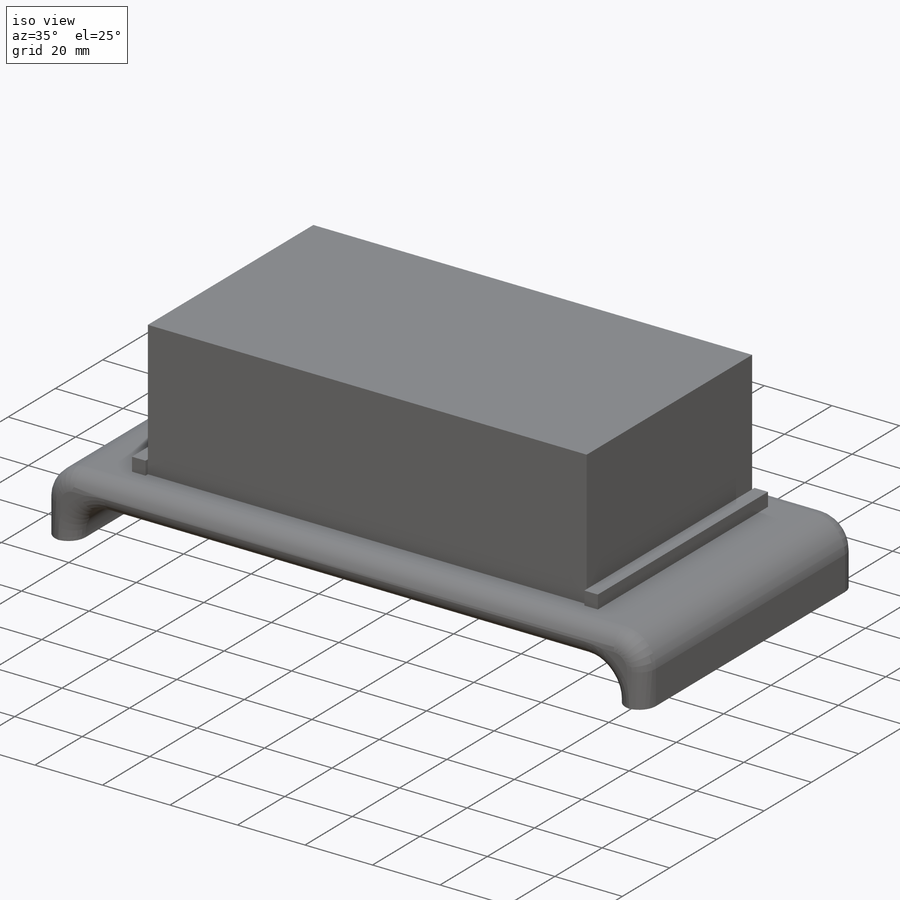
[diagram: iso view]
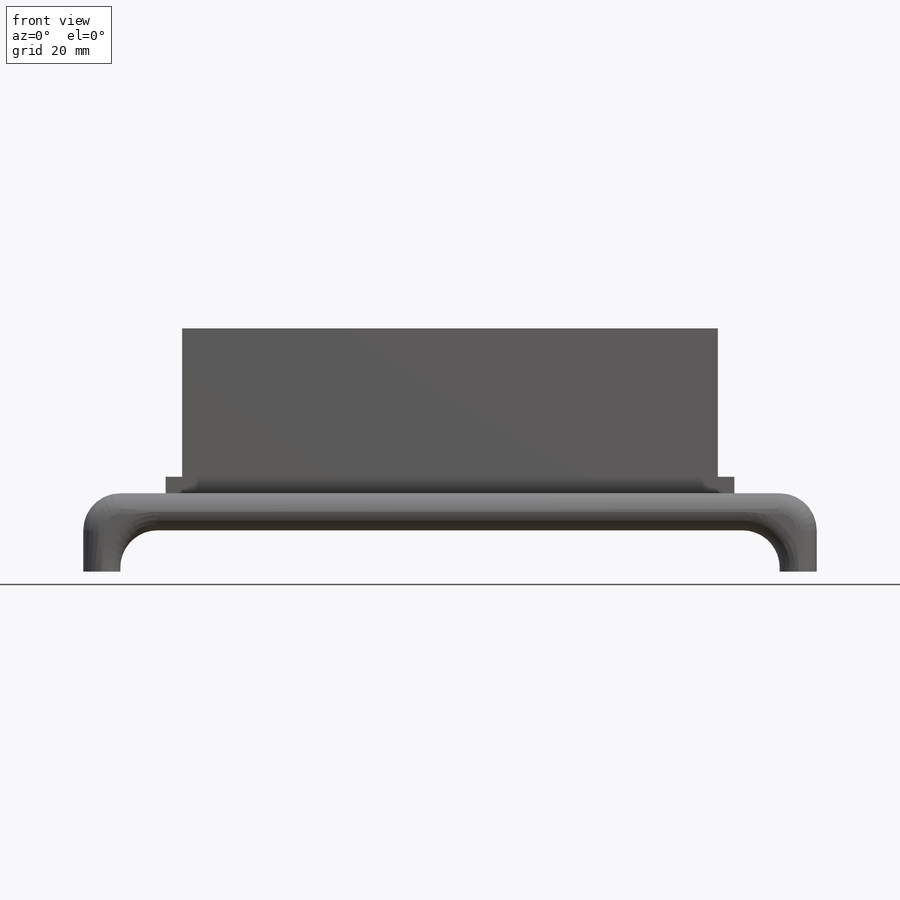
[diagram: front view]
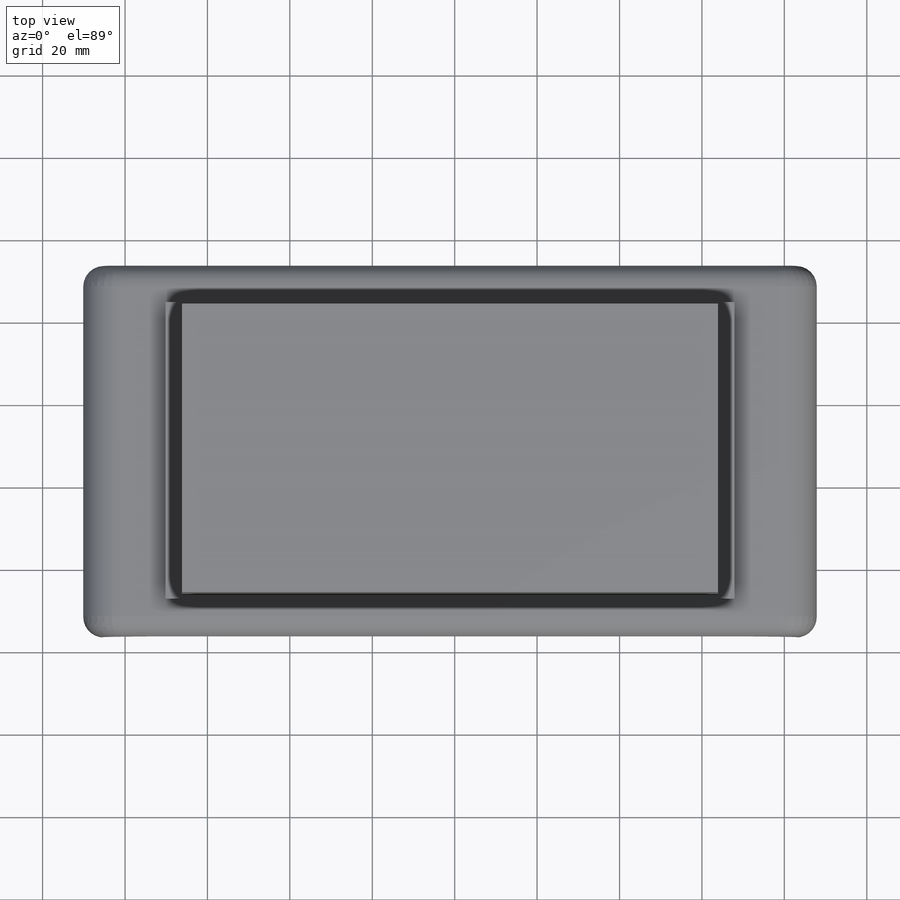
[diagram: top view]
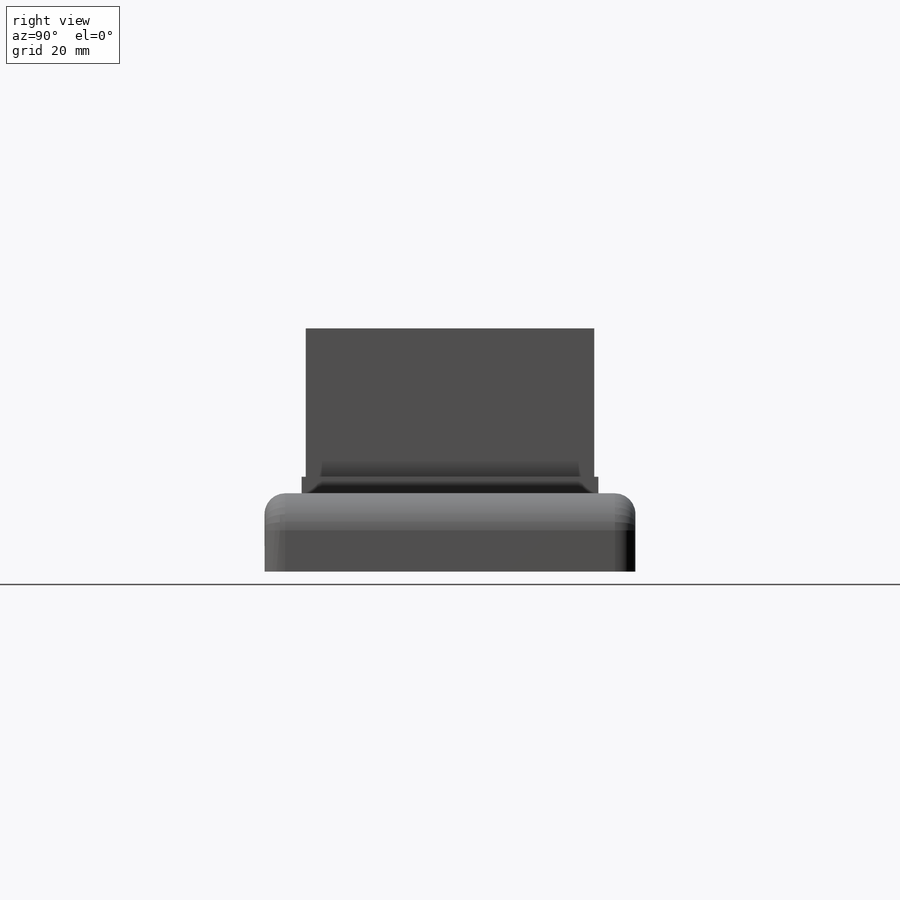
[diagram: right view]
SOLIDWORKS PART (.sldprt)
format: sldprt  version: not decoded by parser v0  size: 387,584 bytes
history: native  units: mm
features: sketch x4, extrude x4, plane x3, fillet x2, material x1 (+12 scaffold rows collapsed)
feature tree (26):
  scaffold x12  (default folders/planes/origin — collapsed)
  material  "Matériau <non spécifié>"
  plane  "Plan de face"
  plane  "Plan de dessus"
  plane  "Plan de droite"
  sketch  "Esquisse1"  dims[D1=130.0mm D2=70.0mm]
  sketch  "Esquisse2"  dims[D1=15.0mm D2=15.0mm D3=10.0mm D4=10.0mm D5=90.0mm D6=160.0mm]
  extrude  "Extrusion1"  Depth=9mm
  extrude  "Beurre (avec marges)"  Depth=40mm
  sketch  "Esquisse4"  dims[D1=72.0mm D2=6.0mm D3=1.0mm D4=90.0mm]
  extrude  "Extrusion3"  Depth=4mm
  sketch  "Esquisse6"  dims[D1=9.0mm D2=9.0mm]
  extrude  "Extrusion4"  Depth=19mm
  fillet  "Congé1"  Radius=9mm
  fillet  "Congé2"  Radius=5mm
decode coverage: 10 of 10 modeling features carry decoded parameters
note: suppression state not decoded; provenance and decode notes live in map.json
